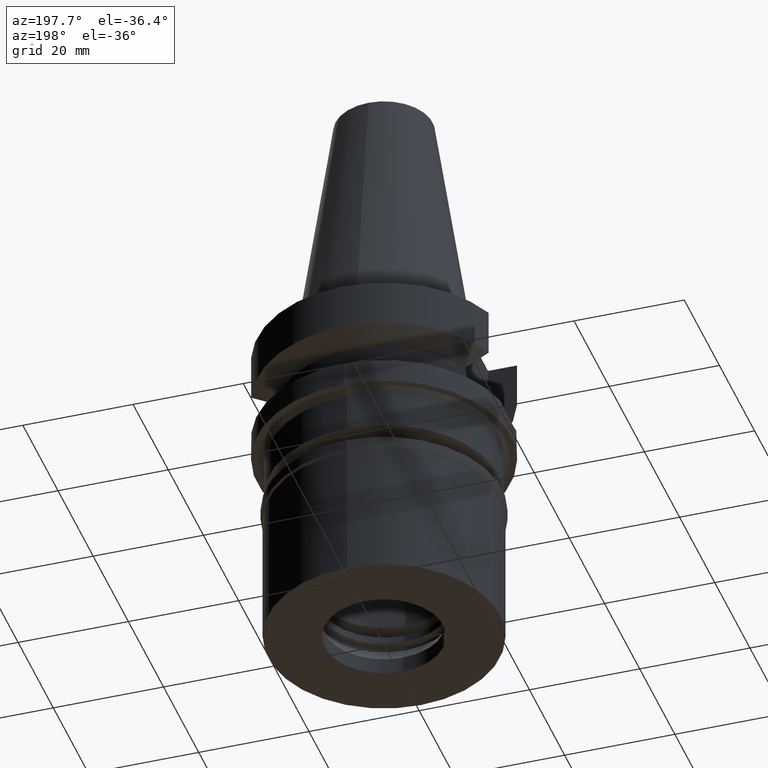
[diagram: clean part render]
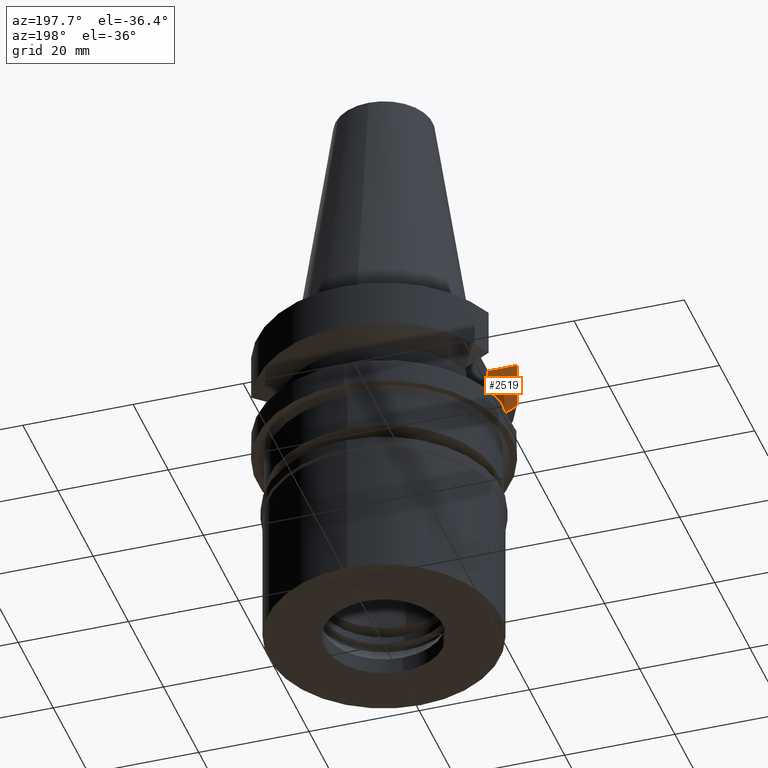
[diagram: same view with one face highlighted and labeled with its STEP entity id]
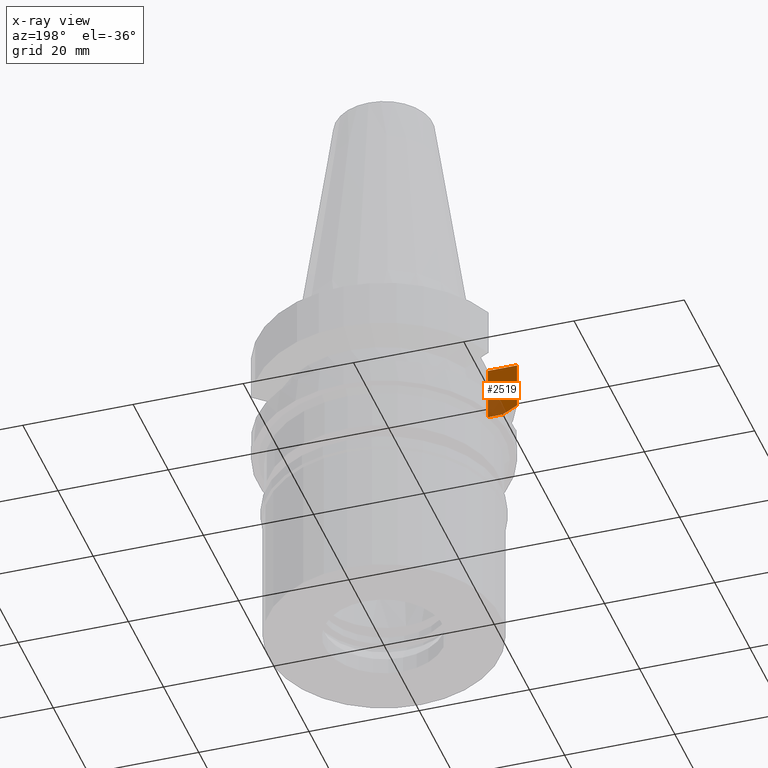
[diagram: x-ray of the same camera — body ghosted, the highlighted face saturated]
A machine part, auxiliary view. The second image highlights one B-rep face of the part: STEP entity #2519.
The next image is the same camera in x-ray: the body ghosted, the highlighted face saturated — about 23% of this face is hidden behind the body in this view.
In plain terms, the highlighted planar face has unit normal (0, -1, 0).
Its self-contained STEP definition (entity closure, byte-faithful):
#27 = CARTESIAN_POINT ( 'NONE',  ( -16.29999999999999716, -8.050000000000000711, -10.94999999999999929 ) ) ;
#33 = EDGE_CURVE ( 'NONE', #1879, #627, #329, .T. ) ;
#161 = ORIENTED_EDGE ( 'NONE', *, *, #287, .T. ) ;
#186 = FACE_OUTER_BOUND ( 'NONE', #2235, .T. ) ;
#189 = EDGE_CURVE ( 'NONE', #1669, #2317, #3010, .T. ) ;
#219 = DIRECTION ( 'NONE',  ( 0.0000000000000000000, -1.000000000000000000, 0.0000000000000000000 ) ) ;
#279 = ORIENTED_EDGE ( 'NONE', *, *, #33, .F. ) ;
#287 = EDGE_CURVE ( 'NONE', #2655, #627, #1961, .T. ) ;
#292 = EDGE_CURVE ( 'NONE', #1879, #2317, #1946, .T. ) ;
#329 = B_SPLINE_CURVE_WITH_KNOTS ( 'NONE', 3,
 ( #2088, #1848, #471, #2640 ),
 .UNSPECIFIED., .F., .F.,
 ( 4, 4 ),
 ( 0.0000000000000000000, 1.000000000000000000 ),
 .UNSPECIFIED. ) ;
#419 = DIRECTION ( 'NONE',  ( -0.9999999999976610932, 2.130145243754915204E-06, -3.746156298141855142E-07 ) ) ;
#471 = CARTESIAN_POINT ( 'NONE',  ( -19.78174442233869001, -8.049991903459030596, -10.51718567402809157 ) ) ;
#619 = VECTOR ( 'NONE', #1107, 1000.000000000000114 ) ;
#627 = VERTEX_POINT ( 'NONE', #1358 ) ;
#663 = CARTESIAN_POINT ( 'NONE',  ( -21.54524325238000060, -8.049999577366000025, -9.567211146628999074 ) ) ;
#720 = LINE ( 'NONE', #2566, #1883 ) ;
#758 = ORIENTED_EDGE ( 'NONE', *, *, #189, .F. ) ;
#896 = DIRECTION ( 'NONE',  ( 0.0000000000000000000, 0.0000000000000000000, -1.000000000000000000 ) ) ;
#949 = CARTESIAN_POINT ( 'NONE',  ( -16.29999999999999716, -8.050000000000000711, -1.000000000000000000 ) ) ;
#1008 = CARTESIAN_POINT ( 'NONE',  ( -21.54524325238000060, -8.049999577366000025, -9.567211146628999074 ) ) ;
#1016 = CARTESIAN_POINT ( 'NONE',  ( -16.29999999999999716, -8.050000000000000711, -10.94999999999999929 ) ) ;
#1107 = DIRECTION ( 'NONE',  ( 1.843191795637992365E-08, -4.933165888406983159E-08, 0.9999999999999985567 ) ) ;
#1152 = CARTESIAN_POINT ( 'NONE',  ( -16.29999999999999716, -8.050000000000000711, -1.000000000000000000 ) ) ;
#1336 = VECTOR ( 'NONE', #419, 1000.000000000000114 ) ;
#1358 = CARTESIAN_POINT ( 'NONE',  ( -18.96738966519999892, -8.049994318072998922, -10.95000099924999937 ) ) ;
#1370 = CARTESIAN_POINT ( 'NONE',  ( -16.29999999999999716, -8.050000000000000711, -10.94999999999999929 ) ) ;
#1643 = DIRECTION ( 'NONE',  ( 0.0000000000000000000, 0.0000000000000000000, -1.000000000000000000 ) ) ;
#1661 = ORIENTED_EDGE ( 'NONE', *, *, #292, .T. ) ;
#1669 = VERTEX_POINT ( 'NONE', #949 ) ;
#1834 = AXIS2_PLACEMENT_3D ( 'NONE', #1370, #219, #896 ) ;
#1848 = CARTESIAN_POINT ( 'NONE',  ( -20.64098922449850093, -8.049999155425611619, -10.05625859809538447 ) ) ;
#1879 = VERTEX_POINT ( 'NONE', #1008 ) ;
#1883 = VECTOR ( 'NONE', #1643, 1000.000000000000000 ) ;
#1907 = ORIENTED_EDGE ( 'NONE', *, *, #2842, .T. ) ;
#1946 = LINE ( 'NONE', #663, #619 ) ;
#1961 = LINE ( 'NONE', #1016, #1336 ) ;
#2088 = CARTESIAN_POINT ( 'NONE',  ( -21.54524325238000060, -8.049999577366000025, -9.567211146628999074 ) ) ;
#2235 = EDGE_LOOP ( 'NONE', ( #1661, #758, #1907, #161, #279 ) ) ;
#2317 = VERTEX_POINT ( 'NONE', #2476 ) ;
#2476 = CARTESIAN_POINT ( 'NONE',  ( -21.54524309446999908, -8.050000000000000711, -1.000000000000000000 ) ) ;
#2519 = ADVANCED_FACE ( 'NONE', ( #186 ), #3003, .F. ) ;
#2566 = CARTESIAN_POINT ( 'NONE',  ( -16.29999999999999716, -8.050000000000000711, -1.000000000000000000 ) ) ;
#2640 = CARTESIAN_POINT ( 'NONE',  ( -18.96738966519999892, -8.049994318072998922, -10.95000099924999937 ) ) ;
#2655 = VERTEX_POINT ( 'NONE', #27 ) ;
#2769 = DIRECTION ( 'NONE',  ( -1.000000000000000000, -9.313164748262000573E-14, 0.0000000000000000000 ) ) ;
#2842 = EDGE_CURVE ( 'NONE', #1669, #2655, #720, .T. ) ;
#3003 = PLANE ( 'NONE',  #1834 ) ;
#3010 = LINE ( 'NONE', #1152, #3012 ) ;
#3012 = VECTOR ( 'NONE', #2769, 1000.000000000000000 ) ;